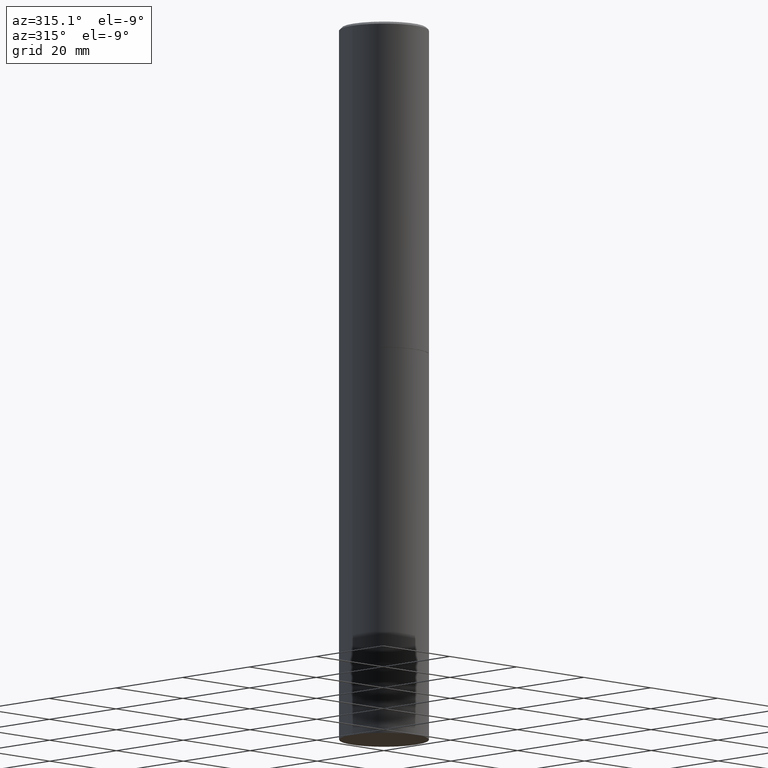
[diagram: clean part render]
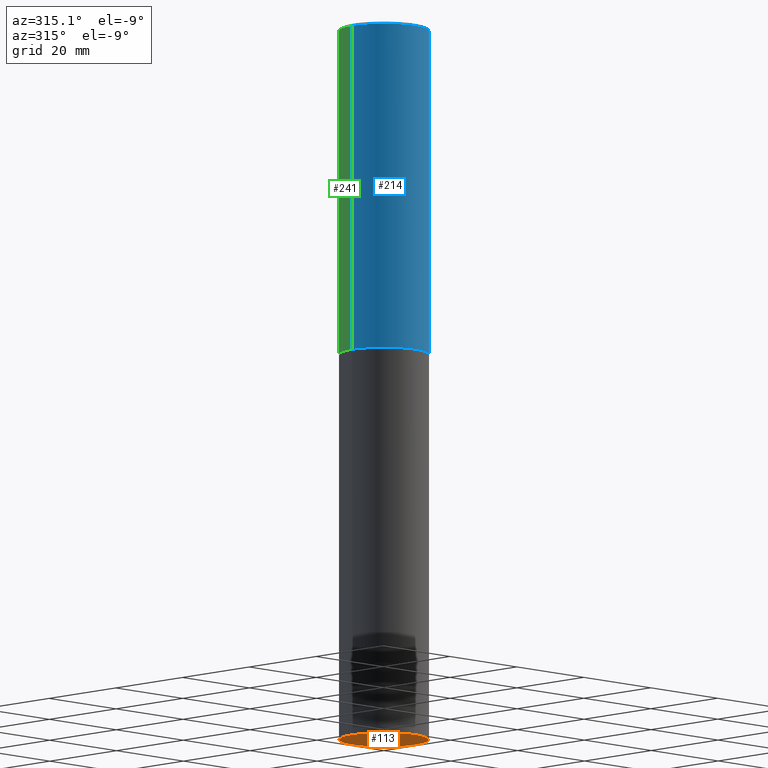
[diagram: same view with three faces highlighted in distinct colors, each labeled with its STEP entity id]
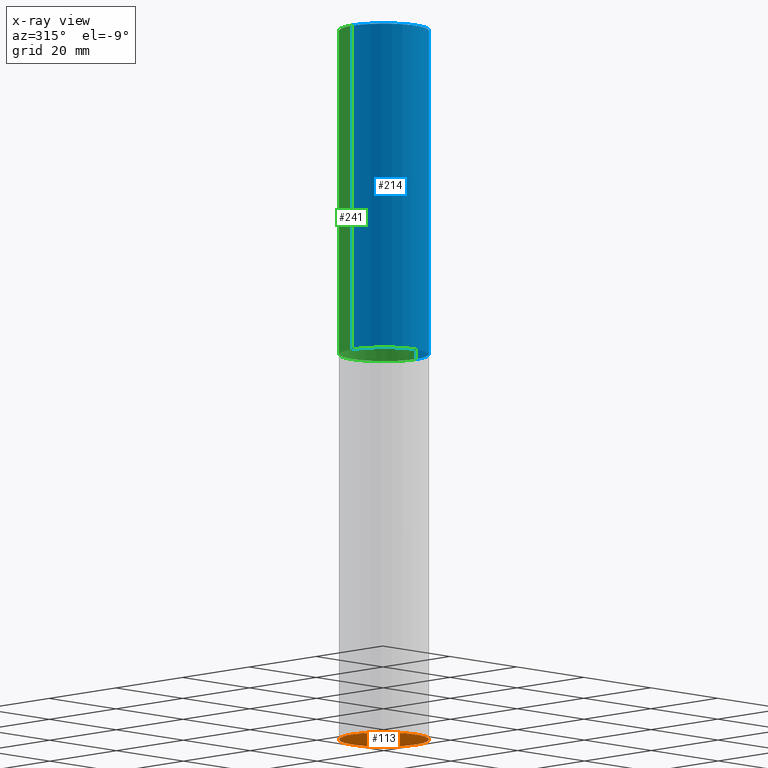
[diagram: x-ray of the same camera — body ghosted, the three highlighted faces saturated]
A machine part, auxiliary view with three faces highlighted in distinct colors.
The next image is the same camera in x-ray (body ghosted, the three faces saturated) — at least one of them is partly hidden behind the body in this view.
Their STEP definitions:

[orange] entity #113 — the highlighted planar face has unit normal (0, -0, -1).
#13 = CARTESIAN_POINT ( 'NONE',  ( 1.467281283711081958E-28, -2.094888803305887271E-14, -6.000000000000000888 ) ) ;
#31 = CIRCLE ( 'NONE', #205, 0.3750000000000000555 ) ;
#77 = VERTEX_POINT ( 'NONE', #356 ) ;
#80 = ORIENTED_EDGE ( 'NONE', *, *, #247, .F. ) ;
#96 = CARTESIAN_POINT ( 'NONE',  ( 1.467281283711081958E-28, -2.094888803305887271E-14, -6.000000000000000888 ) ) ;
#113 = ADVANCED_FACE ( 'NONE', ( #200 ), #203, .T. ) ;
#117 = DIRECTION ( 'NONE',  ( 1.000000000000000000, -6.982962677686261189E-15, 0.000000000000000000 ) ) ;
#131 = VERTEX_POINT ( 'NONE', #240 ) ;
#140 = DIRECTION ( 'NONE',  ( -2.445468806185136597E-29, 3.491481338843145583E-15, 1.000000000000000000 ) ) ;
#143 = CARTESIAN_POINT ( 'NONE',  ( 2.618611004132496745E-15, 0.3749999999999790723, -6.000000000000001776 ) ) ;
#155 = CIRCLE ( 'NONE', #178, 0.3750000000000000555 ) ;
#173 = DIRECTION ( 'NONE',  ( -1.000000000000000000, 6.982962677686265922E-15, -4.876176775795935793E-29 ) ) ;
#178 = AXIS2_PLACEMENT_3D ( 'NONE', #13, #140, #258 ) ;
#200 = FACE_OUTER_BOUND ( 'NONE', #313, .T. ) ;
#203 = PLANE ( 'NONE',  #268 ) ;
#205 = AXIS2_PLACEMENT_3D ( 'NONE', #96, #262, #117 ) ;
#240 = CARTESIAN_POINT ( 'NONE',  ( 0.3750000000000000555, -2.356749903719122272E-14, -6.000000000000000888 ) ) ;
#247 = EDGE_CURVE ( 'NONE', #131, #77, #155, .T. ) ;
#258 = DIRECTION ( 'NONE',  ( 1.000000000000000000, -6.982962677686261189E-15, 0.000000000000000000 ) ) ;
#262 = DIRECTION ( 'NONE',  ( -2.445468806185136597E-29, 3.491481338843145583E-15, 1.000000000000000000 ) ) ;
#268 = AXIS2_PLACEMENT_3D ( 'NONE', #143, #323, #173 ) ;
#278 = EDGE_CURVE ( 'NONE', #77, #131, #31, .T. ) ;
#300 = ORIENTED_EDGE ( 'NONE', *, *, #278, .F. ) ;
#313 = EDGE_LOOP ( 'NONE', ( #80, #300 ) ) ;
#323 = DIRECTION ( 'NONE',  ( 2.438088387897960049E-29, -3.491481338843145188E-15, -1.000000000000000000 ) ) ;
#356 = CARTESIAN_POINT ( 'NONE',  ( -0.3750000000000000555, -1.261069559833838480E-14, -6.000000000000000888 ) ) ;

[blue] entity #214 — the highlighted cylindrical surface (partial cylindrical patch) has radius 9.525 mm, axis along (-0, 0, 1).
#5 = VECTOR ( 'NONE', #45, 39.37007874015748143 ) ;
#7 = EDGE_CURVE ( 'NONE', #366, #65, #363, .T. ) ;
#12 = CARTESIAN_POINT ( 'NONE',  ( 6.722593748202942280E-29, -9.598082200479810007E-15, -2.749000000000000554 ) ) ;
#15 = CARTESIAN_POINT ( 'NONE',  ( 0.3749999999999998890, -2.618611004132349228E-15, 1.828566290923475362E-29 ) ) ;
#25 = AXIS2_PLACEMENT_3D ( 'NONE', #364, #51, #213 ) ;
#33 = EDGE_CURVE ( 'NONE', #344, #366, #73, .T. ) ;
#40 = DIRECTION ( 'NONE',  ( 1.000000000000000000, -6.982962677686266711E-15, 4.876176775795935793E-29 ) ) ;
#45 = DIRECTION ( 'NONE',  ( -2.445468806185136877E-29, 3.491481338843145188E-15, 1.000000000000000000 ) ) ;
#47 = CARTESIAN_POINT ( 'NONE',  ( -0.3749999999999998890, 2.664535259100374908E-15, -1.844600658845589038E-29 ) ) ;
#51 = DIRECTION ( 'NONE',  ( -2.445468806185136597E-29, 3.491481338843145583E-15, 1.000000000000000000 ) ) ;
#65 = VERTEX_POINT ( 'NONE', #196 ) ;
#73 = LINE ( 'NONE', #47, #164 ) ;
#75 = EDGE_CURVE ( 'NONE', #344, #325, #192, .T. ) ;
#115 = AXIS2_PLACEMENT_3D ( 'NONE', #228, #128, #40 ) ;
#127 = DIRECTION ( 'NONE',  ( -2.445468806185136597E-29, 3.491481338843145583E-15, 1.000000000000000000 ) ) ;
#128 = DIRECTION ( 'NONE',  ( -2.445468806185136597E-29, 3.491481338843145583E-15, 1.000000000000000000 ) ) ;
#153 = CARTESIAN_POINT ( 'NONE',  ( -0.3749999999999997780, 2.548781377355484746E-15, -0.02000000000000010103 ) ) ;
#164 = VECTOR ( 'NONE', #206, 39.37007874015748143 ) ;
#180 = ORIENTED_EDGE ( 'NONE', *, *, #309, .T. ) ;
#188 = EDGE_LOOP ( 'NONE', ( #280, #219, #180, #287 ) ) ;
#192 = CIRCLE ( 'NONE', #245, 0.3750000000000000555 ) ;
#196 = CARTESIAN_POINT ( 'NONE',  ( 0.3749999999999997780, -2.642516375941186056E-15, -0.02000000000000010103 ) ) ;
#206 = DIRECTION ( 'NONE',  ( -2.445468806185136877E-29, 3.491481338843145188E-15, 1.000000000000000000 ) ) ;
#210 = CARTESIAN_POINT ( 'NONE',  ( -0.3750000000000000555, -2.169420654527958195E-15, -2.749000000000000554 ) ) ;
#213 = DIRECTION ( 'NONE',  ( 1.000000000000000000, -6.982962677686265922E-15, 0.000000000000000000 ) ) ;
#214 = ADVANCED_FACE ( 'NONE', ( #331 ), #269, .T. ) ;
#219 = ORIENTED_EDGE ( 'NONE', *, *, #75, .T. ) ;
#228 = CARTESIAN_POINT ( 'NONE',  ( 0.000000000000000000, 0.000000000000000000, 0.000000000000000000 ) ) ;
#233 = DIRECTION ( 'NONE',  ( 1.000000000000000000, -6.982962677686266711E-15, 0.000000000000000000 ) ) ;
#236 = LINE ( 'NONE', #15, #5 ) ;
#245 = AXIS2_PLACEMENT_3D ( 'NONE', #12, #127, #233 ) ;
#269 = CYLINDRICAL_SURFACE ( 'NONE', #115, 0.3749999999999998890 ) ;
#280 = ORIENTED_EDGE ( 'NONE', *, *, #33, .F. ) ;
#287 = ORIENTED_EDGE ( 'NONE', *, *, #7, .F. ) ;
#309 = EDGE_CURVE ( 'NONE', #325, #65, #236, .T. ) ;
#325 = VERTEX_POINT ( 'NONE', #328 ) ;
#328 = CARTESIAN_POINT ( 'NONE',  ( 0.3750000000000000555, -1.221669320461216002E-14, -2.749000000000000554 ) ) ;
#331 = FACE_OUTER_BOUND ( 'NONE', #188, .T. ) ;
#344 = VERTEX_POINT ( 'NONE', #210 ) ;
#363 = CIRCLE ( 'NONE', #25, 0.3749999999999997780 ) ;
#364 = CARTESIAN_POINT ( 'NONE',  ( 4.890937612370298557E-31, -6.982962677686327354E-17, -0.02000000000000010103 ) ) ;
#366 = VERTEX_POINT ( 'NONE', #153 ) ;

[green] entity #241 — the highlighted cylindrical surface (partial cylindrical patch) has radius 9.525 mm, axis along (-0, 0, 1).
#5 = VECTOR ( 'NONE', #45, 39.37007874015748143 ) ;
#11 = DIRECTION ( 'NONE',  ( 1.000000000000000000, -6.982962677686266711E-15, 4.876176775795935793E-29 ) ) ;
#15 = CARTESIAN_POINT ( 'NONE',  ( 0.3749999999999998890, -2.618611004132349228E-15, 1.828566290923475362E-29 ) ) ;
#21 = DIRECTION ( 'NONE',  ( -2.445468806185136597E-29, 3.491481338843145583E-15, 1.000000000000000000 ) ) ;
#27 = CIRCLE ( 'NONE', #151, 0.3749999999999997780 ) ;
#33 = EDGE_CURVE ( 'NONE', #344, #366, #73, .T. ) ;
#35 = FACE_OUTER_BOUND ( 'NONE', #186, .T. ) ;
#45 = DIRECTION ( 'NONE',  ( -2.445468806185136877E-29, 3.491481338843145188E-15, 1.000000000000000000 ) ) ;
#47 = CARTESIAN_POINT ( 'NONE',  ( -0.3749999999999998890, 2.664535259100374908E-15, -1.844600658845589038E-29 ) ) ;
#49 = AXIS2_PLACEMENT_3D ( 'NONE', #348, #193, #11 ) ;
#62 = AXIS2_PLACEMENT_3D ( 'NONE', #126, #198, #189 ) ;
#65 = VERTEX_POINT ( 'NONE', #196 ) ;
#73 = LINE ( 'NONE', #47, #164 ) ;
#74 = CARTESIAN_POINT ( 'NONE',  ( 4.890937612370298557E-31, -6.982962677686327354E-17, -0.02000000000000010103 ) ) ;
#114 = ORIENTED_EDGE ( 'NONE', *, *, #352, .F. ) ;
#116 = ORIENTED_EDGE ( 'NONE', *, *, #286, .T. ) ;
#119 = CYLINDRICAL_SURFACE ( 'NONE', #49, 0.3749999999999998890 ) ;
#126 = CARTESIAN_POINT ( 'NONE',  ( 6.722593748202942280E-29, -9.598082200479810007E-15, -2.749000000000000554 ) ) ;
#151 = AXIS2_PLACEMENT_3D ( 'NONE', #74, #21, #152 ) ;
#152 = DIRECTION ( 'NONE',  ( 1.000000000000000000, -6.982962677686265922E-15, 0.000000000000000000 ) ) ;
#153 = CARTESIAN_POINT ( 'NONE',  ( -0.3749999999999997780, 2.548781377355484746E-15, -0.02000000000000010103 ) ) ;
#164 = VECTOR ( 'NONE', #206, 39.37007874015748143 ) ;
#166 = ORIENTED_EDGE ( 'NONE', *, *, #309, .F. ) ;
#186 = EDGE_LOOP ( 'NONE', ( #116, #312, #114, #166 ) ) ;
#189 = DIRECTION ( 'NONE',  ( 1.000000000000000000, -6.982962677686266711E-15, 0.000000000000000000 ) ) ;
#193 = DIRECTION ( 'NONE',  ( -2.445468806185136597E-29, 3.491481338843145583E-15, 1.000000000000000000 ) ) ;
#196 = CARTESIAN_POINT ( 'NONE',  ( 0.3749999999999997780, -2.642516375941186056E-15, -0.02000000000000010103 ) ) ;
#198 = DIRECTION ( 'NONE',  ( -2.445468806185136597E-29, 3.491481338843145583E-15, 1.000000000000000000 ) ) ;
#206 = DIRECTION ( 'NONE',  ( -2.445468806185136877E-29, 3.491481338843145188E-15, 1.000000000000000000 ) ) ;
#210 = CARTESIAN_POINT ( 'NONE',  ( -0.3750000000000000555, -2.169420654527958195E-15, -2.749000000000000554 ) ) ;
#236 = LINE ( 'NONE', #15, #5 ) ;
#237 = CIRCLE ( 'NONE', #62, 0.3750000000000000555 ) ;
#241 = ADVANCED_FACE ( 'NONE', ( #35 ), #119, .T. ) ;
#286 = EDGE_CURVE ( 'NONE', #325, #344, #237, .T. ) ;
#309 = EDGE_CURVE ( 'NONE', #325, #65, #236, .T. ) ;
#312 = ORIENTED_EDGE ( 'NONE', *, *, #33, .T. ) ;
#325 = VERTEX_POINT ( 'NONE', #328 ) ;
#328 = CARTESIAN_POINT ( 'NONE',  ( 0.3750000000000000555, -1.221669320461216002E-14, -2.749000000000000554 ) ) ;
#344 = VERTEX_POINT ( 'NONE', #210 ) ;
#348 = CARTESIAN_POINT ( 'NONE',  ( 0.000000000000000000, 0.000000000000000000, 0.000000000000000000 ) ) ;
#352 = EDGE_CURVE ( 'NONE', #65, #366, #27, .T. ) ;
#366 = VERTEX_POINT ( 'NONE', #153 ) ;